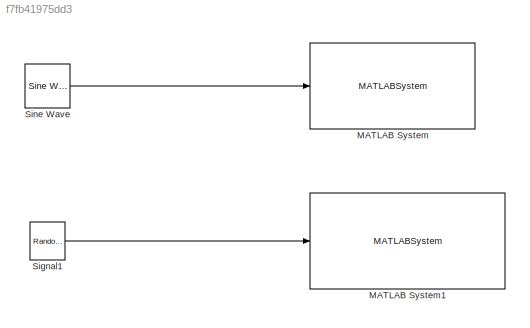
MODEL slx_f7fb41975dd3
KIND model
CONFIG AbsTol = auto
CONFIG EnableMultiTasking = off
CONFIG FixedStep = auto
CONFIG MaxStep = auto
CONFIG MinStep = auto
CONFIG RelTol = 1e-3
CONFIG SampleTimeConstraint = Unconstrained
CONFIG SolverName = FixedStepDiscrete
CONFIG StartTime = 0.0
CONFIG StopTime = inf
BLOCK [MATLABSystem] MATLAB System
  Commented = on
  MaskDisplay = disp(['Nuand' char(10) 'bladeRF']);\nport_label('input',1,'TX Samples');
  MaskType = bladeRF_Simulink
  SimulateUsing = Interpreted execution
  System = bladeRF_Simulink
  device_string = *:instance=1
  enable_overrun = off
  enable_rx = off
  enable_rx_biastee = off
  enable_tx = on
  enable_tx_biastee = off
  enable_underrun = off
  loopback_mode = None
  rx_agc = AUTO
  rx_bandwidth = 1.5
  rx_buf_size = 16384
  rx_frequency = 2.4e9
  rx_gain = 90
  rx_num_buffers = 256
  rx_num_transfers = 8
  rx_samplerate = 1e6
  rx_step_size = 16384
  rx_timeout_ms = 3500
  tx_bandwidth = 1.5
  tx_buf_size = 16384
  tx_frequency = 2.4e9
  tx_gain = 70
  tx_num_buffers = 256
  tx_num_transfers = 8
  tx_samplerate = 1e6
  tx_step_size = 16384
  tx_timeout_ms = 3500
  verbosity = Info
  xb200 = off
BLOCK [MATLABSystem] MATLAB System1
  MaskDisplay = disp(['Nuand' char(10) 'bladeRF 2.0' char(10) 'MIMO']);\nport_label('input',1,'TX1 Samples');
  MaskType = bladeRF_MIMO_Simulink
  SimulateUsing = Interpreted execution
  System = bladeRF_MIMO_Simulink
  device_string = *:instance=1
  enable_overrun = off
  enable_rx = off
  enable_rx2 = off
  enable_rx2_biastee = off
  enable_rx_biastee = off
  enable_tx = on
  enable_tx2 = off
  enable_tx2_biastee = off
  enable_tx_biastee = off
  enable_underrun = off
  loopback_mode = None
  rx2_agc = SLOW
  rx2_bandwidth = 1.5
  rx2_frequency = 915e6
  rx2_gain = 60
  rx2_samplerate = 3e6
  rx_agc = SLOW
  rx_bandwidth = 1.5
  rx_buf_size = 16384
  rx_frequency = 915e6
  rx_gain = 60
  rx_num_buffers = 64
  rx_num_transfers = 16
  rx_samplerate = 3e6
  rx_step_size = 16384
  rx_timeout_ms = 3500
  tx2_bandwidth = 1.5
  tx2_frequency = 915e6
  tx2_gain = 70
  tx2_samplerate = 3e6
  tx_bandwidth = 1.5
  tx_buf_size = 16384
  tx_frequency = 2.6e9
  tx_gain = 70
  tx_num_buffers = 16
  tx_num_transfers = 8
  tx_samplerate = 3e6
  tx_step_size = 16384
  tx_timeout_ms = 5000
  verbosity = Info
  xb200 = off
BLOCK [Reference] Signal1  REF=dspsrcs4/Random
Source
  SourceBlock = dspsrcs4/Random\nSource
  SourceType = Random Source
  UserDataPersistent = on
BLOCK [Reference] Sine Wave  REF=dspsrcs4/Sine Wave
  Commented = on
  SourceBlock = dspsrcs4/Sine Wave
  SourceType = Sine Wave
LINE Signal1:1 -> MATLAB System1:1
LINE Sine Wave:1 -> MATLAB System:1
